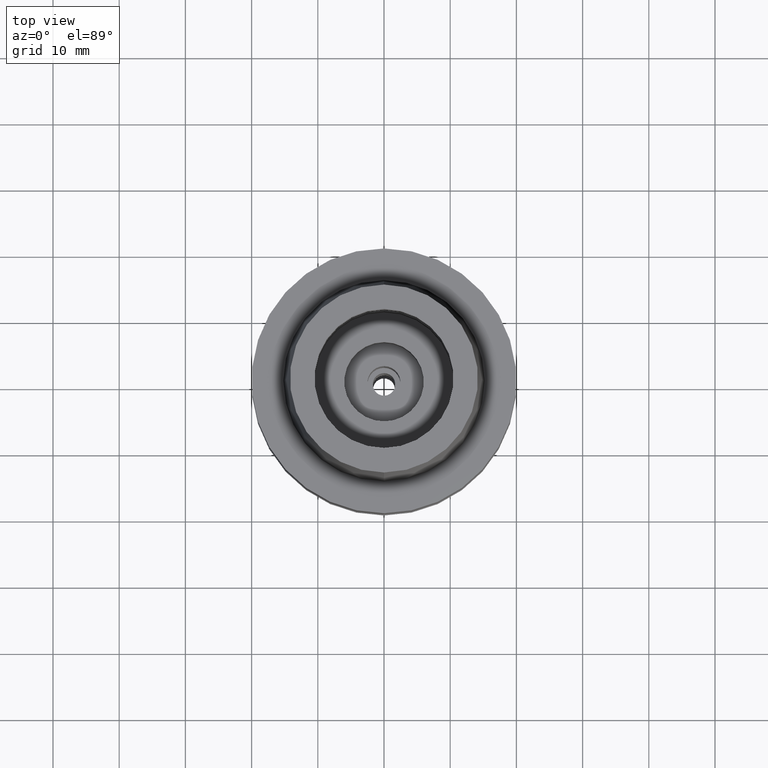
[diagram: clean part render]
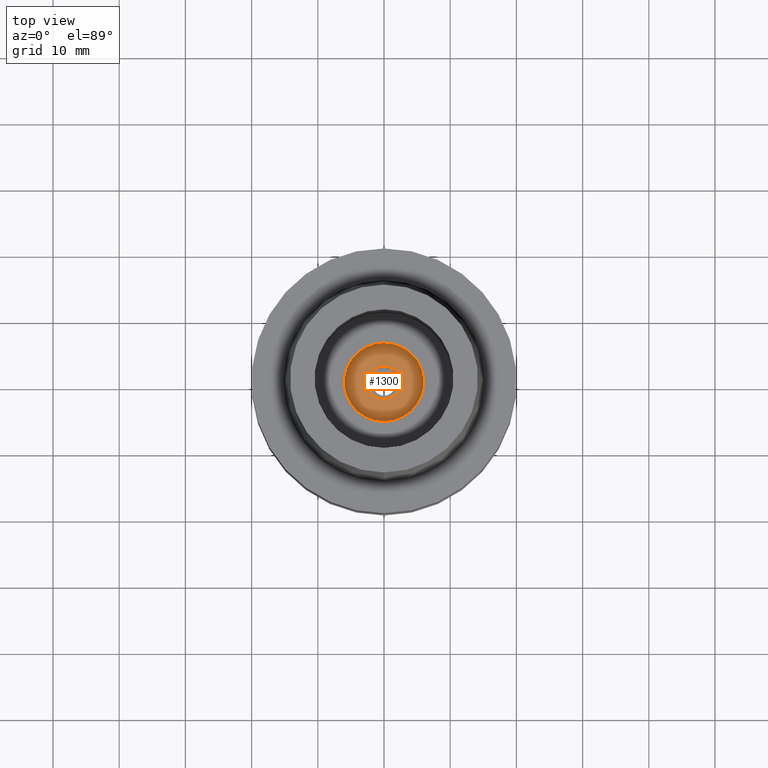
[diagram: same view with one face highlighted and labeled with its STEP entity id]
A machine part, top view. The second image highlights one B-rep face of the part: STEP entity #1300.
In plain terms, the highlighted planar face has unit normal (0, 0, 1).
Its self-contained STEP definition (entity closure, byte-faithful):
#112 = ORIENTED_EDGE ( 'NONE', *, *, #1979, .F. ) ;
#156 = PLANE ( 'NONE',  #1878 ) ;
#172 = AXIS2_PLACEMENT_3D ( 'NONE', #2376, #1347, #1910 ) ;
#203 = VERTEX_POINT ( 'NONE', #1295 ) ;
#321 = CARTESIAN_POINT ( 'NONE',  ( 0.0000000000000000000, 0.0000000000000000000, -15.94999999999999929 ) ) ;
#368 = DIRECTION ( 'NONE',  ( 0.0000000000000000000, 1.000000000000000000, 0.0000000000000000000 ) ) ;
#551 = DIRECTION ( 'NONE',  ( 0.0000000000000000000, -1.000000000000000000, 0.0000000000000000000 ) ) ;
#722 = DIRECTION ( 'NONE',  ( 0.0000000000000000000, 0.0000000000000000000, -1.000000000000000000 ) ) ;
#726 = CARTESIAN_POINT ( 'NONE',  ( 0.0000000000000000000, -2.500000000000000000, -15.94999999999999929 ) ) ;
#776 = CARTESIAN_POINT ( 'NONE',  ( 0.0000000000000000000, 2.500000000000000000, -15.94999999999999929 ) ) ;
#790 = DIRECTION ( 'NONE',  ( 1.000000000000000000, 0.0000000000000000000, 0.0000000000000000000 ) ) ;
#801 = CARTESIAN_POINT ( 'NONE',  ( 0.0000000000000000000, -6.000000000000000000, -15.94999999999999929 ) ) ;
#999 = DIRECTION ( 'NONE',  ( 0.0000000000000000000, 0.0000000000000000000, 1.000000000000000000 ) ) ;
#1034 = EDGE_CURVE ( 'NONE', #1144, #2532, #2590, .T. ) ;
#1081 = EDGE_CURVE ( 'NONE', #203, #2660, #1163, .T. ) ;
#1144 = VERTEX_POINT ( 'NONE', #776 ) ;
#1163 = CIRCLE ( 'NONE', #1211, 6.000000000000000000 ) ;
#1211 = AXIS2_PLACEMENT_3D ( 'NONE', #321, #722, #2406 ) ;
#1295 = CARTESIAN_POINT ( 'NONE',  ( 0.0000000000000000000, 6.000000000000000000, -15.94999999999999929 ) ) ;
#1300 = ADVANCED_FACE ( 'NONE', ( #2487, #2499 ), #156, .T. ) ;
#1328 = CARTESIAN_POINT ( 'NONE',  ( 0.0000000000000000000, 0.0000000000000000000, -15.94999999999999929 ) ) ;
#1347 = DIRECTION ( 'NONE',  ( 0.0000000000000000000, 0.0000000000000000000, -1.000000000000000000 ) ) ;
#1371 = ORIENTED_EDGE ( 'NONE', *, *, #2576, .F. ) ;
#1590 = DIRECTION ( 'NONE',  ( 0.0000000000000000000, 0.0000000000000000000, 1.000000000000000000 ) ) ;
#1704 = CIRCLE ( 'NONE', #172, 6.000000000000000000 ) ;
#1730 = ORIENTED_EDGE ( 'NONE', *, *, #1034, .F. ) ;
#1809 = AXIS2_PLACEMENT_3D ( 'NONE', #2423, #2216, #368 ) ;
#1877 = AXIS2_PLACEMENT_3D ( 'NONE', #1328, #1590, #551 ) ;
#1878 = AXIS2_PLACEMENT_3D ( 'NONE', #2650, #999, #790 ) ;
#1910 = DIRECTION ( 'NONE',  ( 0.0000000000000000000, -1.000000000000000000, 0.0000000000000000000 ) ) ;
#1979 = EDGE_CURVE ( 'NONE', #2660, #203, #1704, .T. ) ;
#2044 = ORIENTED_EDGE ( 'NONE', *, *, #1081, .F. ) ;
#2216 = DIRECTION ( 'NONE',  ( 0.0000000000000000000, 0.0000000000000000000, 1.000000000000000000 ) ) ;
#2376 = CARTESIAN_POINT ( 'NONE',  ( 0.0000000000000000000, 0.0000000000000000000, -15.94999999999999929 ) ) ;
#2406 = DIRECTION ( 'NONE',  ( 0.0000000000000000000, 1.000000000000000000, 0.0000000000000000000 ) ) ;
#2419 = EDGE_LOOP ( 'NONE', ( #2044, #112 ) ) ;
#2423 = CARTESIAN_POINT ( 'NONE',  ( 0.0000000000000000000, 0.0000000000000000000, -15.94999999999999929 ) ) ;
#2482 = CIRCLE ( 'NONE', #1877, 2.500000000000000000 ) ;
#2487 = FACE_OUTER_BOUND ( 'NONE', #2419, .T. ) ;
#2499 = FACE_BOUND ( 'NONE', #2517, .T. ) ;
#2517 = EDGE_LOOP ( 'NONE', ( #1730, #1371 ) ) ;
#2532 = VERTEX_POINT ( 'NONE', #726 ) ;
#2576 = EDGE_CURVE ( 'NONE', #2532, #1144, #2482, .T. ) ;
#2590 = CIRCLE ( 'NONE', #1809, 2.500000000000000000 ) ;
#2650 = CARTESIAN_POINT ( 'NONE',  ( 0.0000000000000000000, 0.0000000000000000000, -15.94999999999999929 ) ) ;
#2660 = VERTEX_POINT ( 'NONE', #801 ) ;